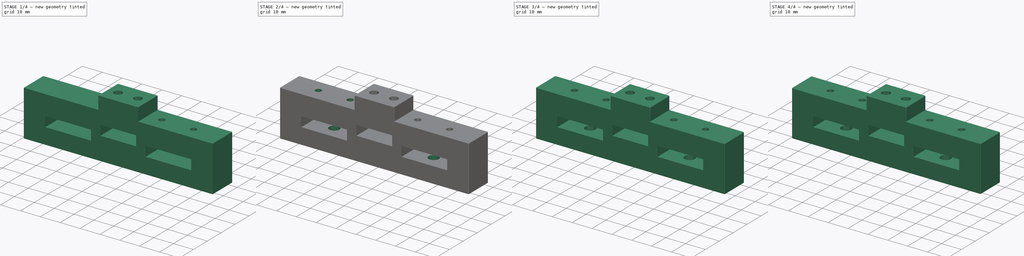
[diagram: build sequence overview — one tinted view per stage of 4, left to right]
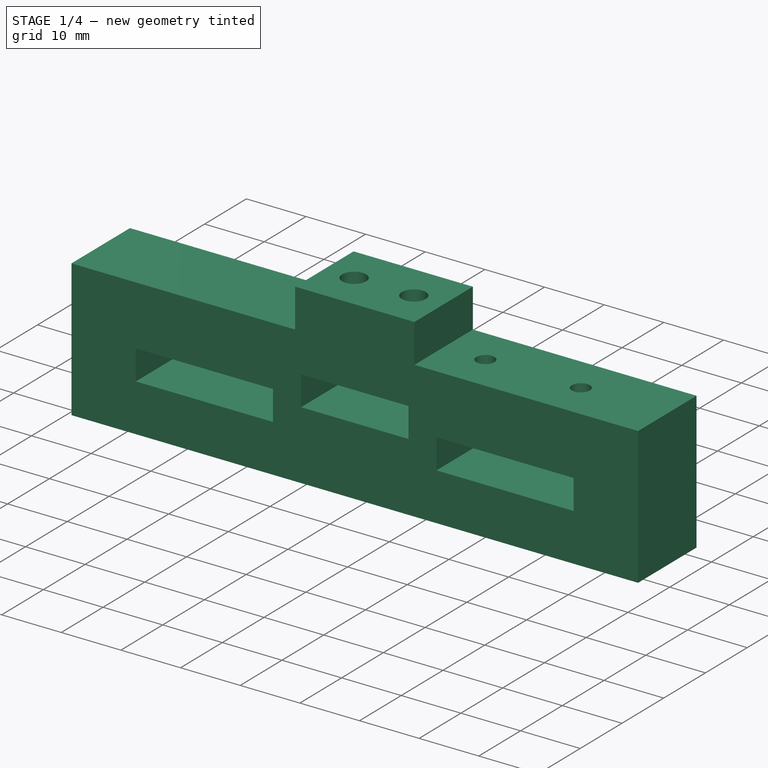
[diagram: stage 1 of 4 — iso view after this stage's code; geometry added in this stage tinted green]
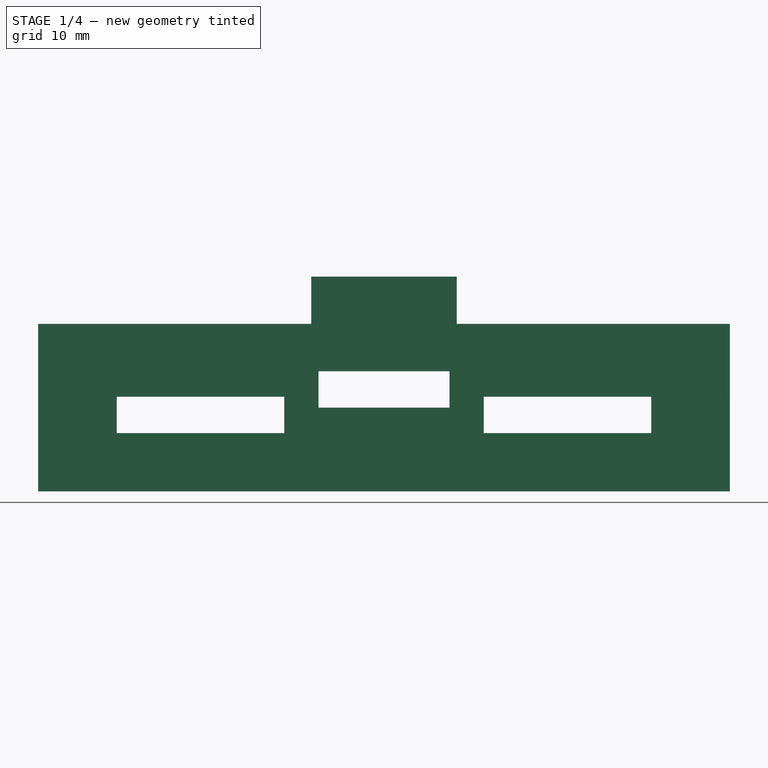
[diagram: stage 1 of 4 — front view after this stage's code; geometry added in this stage tinted green]
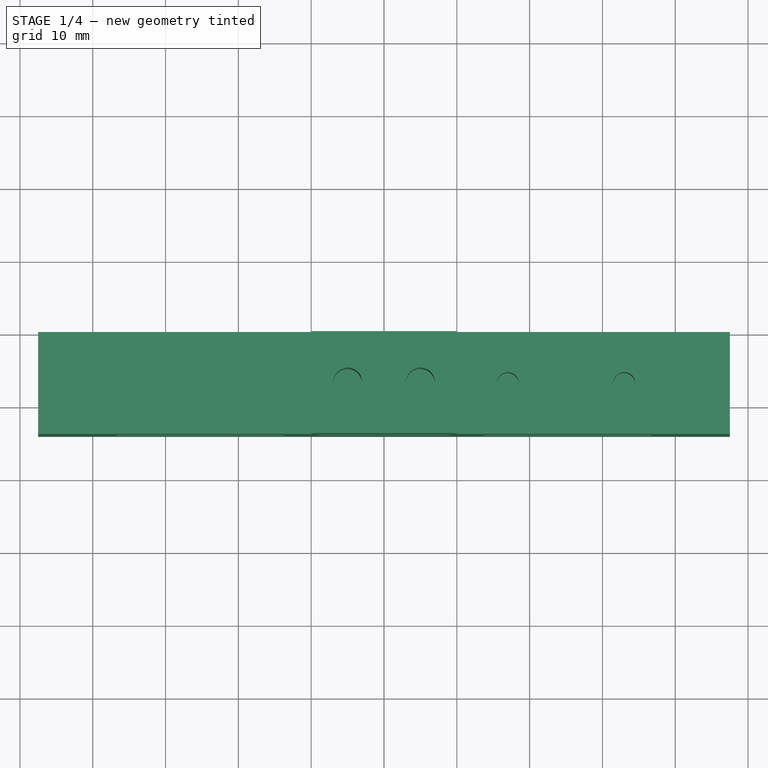
[diagram: stage 1 of 4 — top view after this stage's code; geometry added in this stage tinted green]
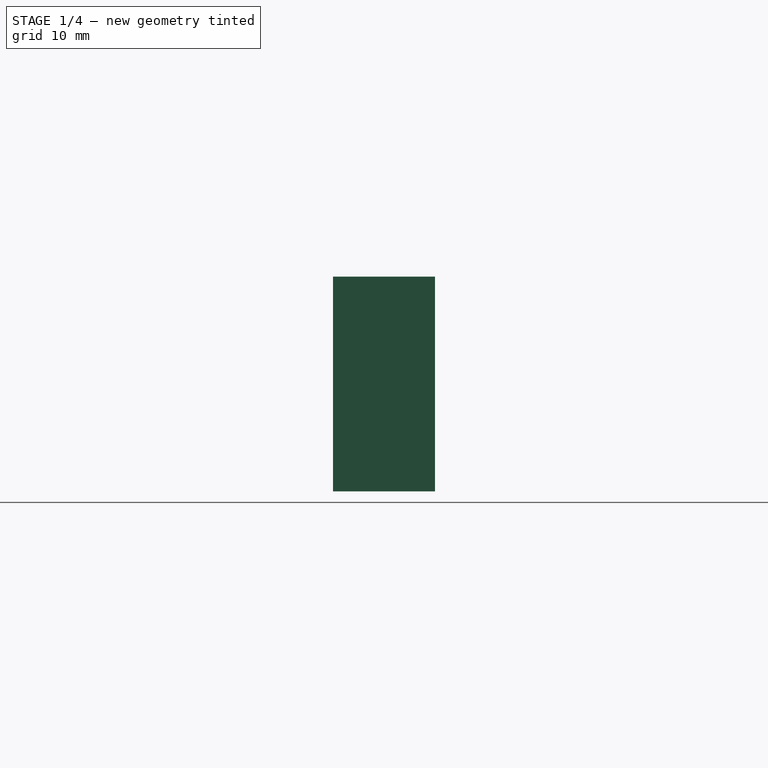
[diagram: stage 1 of 4 — right view after this stage's code; geometry added in this stage tinted green]
FCSTD DOCUMENT  (FreeCAD 0.15R4671 (Git))
Label: screw-block-holder
License: All rights reserved
LicenseURL: http://en.wikipedia.org/wiki/All_rights_reserved
objects: Sketcher::SketchObject×5, PartDesign::Chamfer×5, PartDesign::Pocket×4, PartDesign::Pad×1, PartDesign::Fillet×1
note: 21 computed .brp shape members not serialized (recipe doc carries the construction recipe); baked Part::Feature solids carry a one-line shape summary decoded from their .brp

FEATURE [Sketcher::SketchObject] Sketch
  Placement = pos=(0,0,0) rot=(-1,0,0;4.71239rad)
  sketch-geometry (23):
    g0: LineSegment StartX=-47.5 StartY=0 StartZ=0 EndX=47.5 EndY=0 EndZ=0
    g1: LineSegment StartX=-47.5 StartY=0 StartZ=0 EndX=-47.5 EndY=23 EndZ=0
    g2: LineSegment StartX=47.5 StartY=0 StartZ=0 EndX=47.5 EndY=23 EndZ=0
    g3: LineSegment StartX=-10 StartY=29.5 StartZ=0 EndX=10 EndY=29.5 EndZ=0
    g4: LineSegment StartX=-10 StartY=29.5 StartZ=0 EndX=-10 EndY=23 EndZ=0
    g5: LineSegment StartX=10 StartY=29.5 StartZ=0 EndX=10 EndY=23 EndZ=0
    g6: LineSegment StartX=10 StartY=23 StartZ=0 EndX=47.5 EndY=23 EndZ=0
    g7: LineSegment StartX=-10 StartY=23 StartZ=0 EndX=-47.5 EndY=23 EndZ=0
    g8: LineSegment StartX=-9 StartY=16.5 StartZ=0 EndX=9 EndY=16.5 EndZ=0
    g9: LineSegment StartX=9 StartY=16.5 StartZ=0 EndX=9 EndY=11.5 EndZ=0
    g10: LineSegment StartX=9 StartY=11.5 StartZ=0 EndX=-9 EndY=11.5 EndZ=0
    g11: LineSegment StartX=-9 StartY=11.5 StartZ=0 EndX=-9 EndY=16.5 EndZ=0
    g12: LineSegment [constr] StartX=0 StartY=29.5 StartZ=0 EndX=0 EndY=16.5 EndZ=0
    g13: LineSegment StartX=-36.7 StartY=13 StartZ=0 EndX=-13.7 EndY=13 EndZ=0
    g14: LineSegment StartX=-13.7 StartY=13 StartZ=0 EndX=-13.7 EndY=8 EndZ=0
    g15: LineSegment StartX=-13.7 StartY=8 StartZ=0 EndX=-36.7 EndY=8 EndZ=0
    g16: LineSegment StartX=-36.7 StartY=8 StartZ=0 EndX=-36.7 EndY=13 EndZ=0
    g17: LineSegment StartX=13.7 StartY=13 StartZ=0 EndX=36.7 EndY=13 EndZ=0
    g18: LineSegment StartX=36.7 StartY=13 StartZ=0 EndX=36.7 EndY=8 EndZ=0
    g19: LineSegment StartX=36.7 StartY=8 StartZ=0 EndX=13.7 EndY=8 EndZ=0
    g20: LineSegment StartX=13.7 StartY=8 StartZ=0 EndX=13.7 EndY=13 EndZ=0
    g21: LineSegment [constr] StartX=13.7 StartY=13 StartZ=0 EndX=13.7 EndY=23 EndZ=0
    g22: LineSegment [constr] StartX=-13.7 StartY=13 StartZ=0 EndX=-13.7 EndY=23 EndZ=0
  constraints (70):
    c: Horizontal(g0)
    c: DistanceX(g0) = 95
    c: Symmetric(g0,g0,g-2)
    c: Coincident(g1,g0)
    c: Vertical(g1)
    c: DistanceY(g1) = 23
    c: Horizontal(g3)
    c: DistanceX(g3) = 20
    c: Coincident(g4,g3)
    c: Vertical(g4)
    c: DistanceY(g4) = -6.5
    c: Coincident(g5,g3)
    c: Vertical(g5)
    c: Equal(g5,g4)
    c: Coincident(g6,g5)
    c: Horizontal(g6)
    c: Coincident(g7,g4)
    c: Horizontal(g7)
    c: Equal(g7,g6)
    c: DistanceX(g6) = 37.5
    c: Coincident(g7,g1)
    c: Coincident(g2,g6)
    c: Coincident(g2,g0)
    c: PointOnObject(g0,g-1)
    c: Coincident(g8,g9)
    c: Coincident(g9,g10)
    c: Coincident(g10,g11)
    c: Coincident(g11,g8)
    c: Horizontal(g8)
    c: Horizontal(g10)
    c: Vertical(g9)
    c: Vertical(g11)
    c: Symmetric(g8,g8,g-2)
    c: DistanceY(g11) = 5
    c: PointOnObject(g12,g3)
    c: PointOnObject(g12,g8)
    c: Vertical(g12)
    c: DistanceY(g12) = -13
    c: DistanceX(g10) = -18
    c: PointOnObject(g12,g-2)
    c: Coincident(g13,g14)
    c: Coincident(g14,g15)
    c: Coincident(g15,g16)
    c: Coincident(g16,g13)
    c: Horizontal(g13)
    c: Horizontal(g15)
    c: Vertical(g14)
    c: Vertical(g16)
    c: Coincident(g17,g18)
    c: Coincident(g18,g19)
    c: Coincident(g19,g20)
    c: Coincident(g20,g17)
    c: Horizontal(g17)
    c: Horizontal(g19)
    c: Vertical(g18)
    c: Vertical(g20)
    c: Equal(g14,g18)
    c: Equal(g17,g13)
    c: DistanceX(g19) = -23
    c: DistanceY(g20) = 5
    c: Vertical(g21)
    c: PointOnObject(g21,g6)
    c: PointOnObject(g22,g7)
    c: Vertical(g22)
    c: Equal(g22,g21)
    c: Symmetric(g19,g14,g-2)
    c: Coincident(g21,g17)
    c: Coincident(g22,g13)
    c: DistanceY(g22) = 10
    c: DistanceX(g17,g5) = -3.7
FEATURE [PartDesign::Pad] Pad
  Length = 14
  Length2 = 100
  Placement = pos=(0,0,0) rot=(-1,0,0;4.71239rad)
  Sketch = -> Sketch
  Type = 0
FEATURE [Sketcher::SketchObject] Sketch001
  ExternalGeometry = -> [Pad]
  Placement = pos=(0,0,29.5) rot=(0,0,1;3.14159rad)
  Support = -> Pad [Face8]
  sketch-geometry (3):
    g0: LineSegment [constr] StartX=-10 StartY=7 StartZ=0 EndX=10 EndY=7 EndZ=0
    g1: Circle CenterX=-5 CenterY=7 CenterZ=0 NormalX=0 NormalY=0 NormalZ=1 Radius=2
    g2: Circle CenterX=5 CenterY=7 CenterZ=0 NormalX=0 NormalY=0 NormalZ=1 Radius=2
  constraints (9):
    c: PointOnObject(g0,g-3)
    c: PointOnObject(g0,g-4)
    c: Symmetric(g-5,g-6,g0)
    c: PointOnObject(g1,g0)
    c: PointOnObject(g2,g0)
    c: Equal(g2,g1)
    c: Radius(g2) = 2
    c: DistanceX(g1,g2) = 10
    c: Symmetric(g2,g1,g-2)
FEATURE [PartDesign::Pocket] Pocket
  Length = 17.5
  Placement = pos=(0,0,0) rot=(-1,0,0;4.71239rad)
  Sketch = -> Sketch001
  Type = 0
FEATURE [Sketcher::SketchObject] Sketch002
  ExternalGeometry = -> [Pocket]
  Placement = pos=(0,0,23) rot=(0,0,1;3.14159rad)
  Support = -> Pocket [Face12]
  sketch-geometry (3):
    g0: Circle CenterX=-17 CenterY=7 CenterZ=0 NormalX=0 NormalY=0 NormalZ=1 Radius=1.5
    g1: LineSegment [constr] StartX=-47.5 StartY=7 StartZ=0 EndX=-10 EndY=7 EndZ=0
    g2: Circle CenterX=-33 CenterY=7 CenterZ=0 NormalX=0 NormalY=0 NormalZ=1 Radius=1.5
  constraints (10):
    c: PointOnObject(g1,g-5)
    c: PointOnObject(g1,g-4)
    c: Horizontal(g1)
    c: Symmetric(g-5,g-6,g1)
    c: PointOnObject(g0,g1)
    c: Radius(g0) = 1.5
    c: DistanceX(g0,g-4) = 7
    c: Equal(g2,g0)
    c: PointOnObject(g2,g1)
    c: DistanceX(g0,g2) = -16
FEATURE [PartDesign::Pocket] Pocket001
  Length = 14
  Placement = pos=(0,0,0) rot=(-1,0,0;4.71239rad)
  Sketch = -> Sketch002
  Type = 0
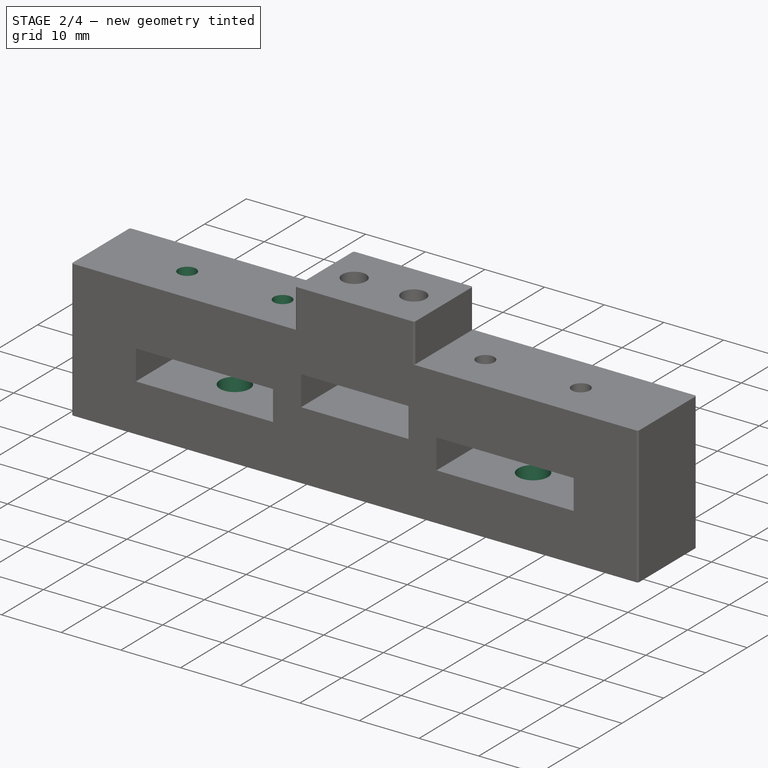
[diagram: stage 2 of 4 — iso view after this stage's code; geometry added in this stage tinted green]
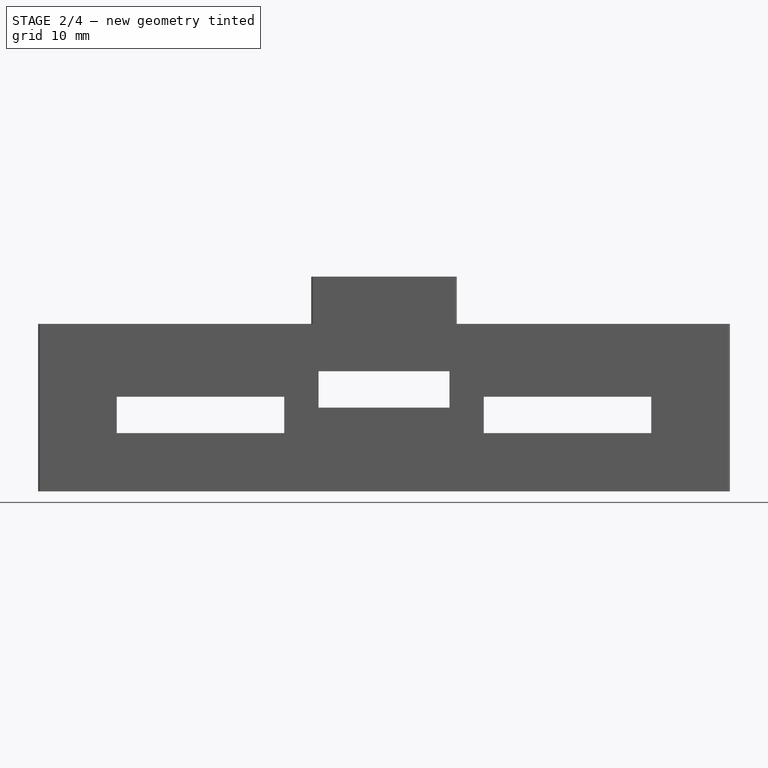
[diagram: stage 2 of 4 — front view after this stage's code; geometry added in this stage tinted green]
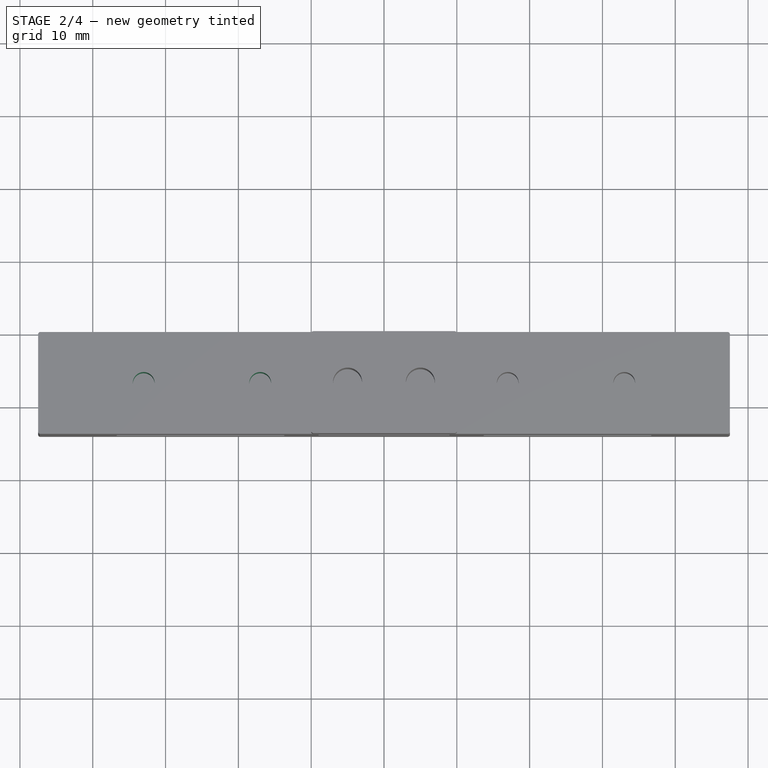
[diagram: stage 2 of 4 — top view after this stage's code; geometry added in this stage tinted green]
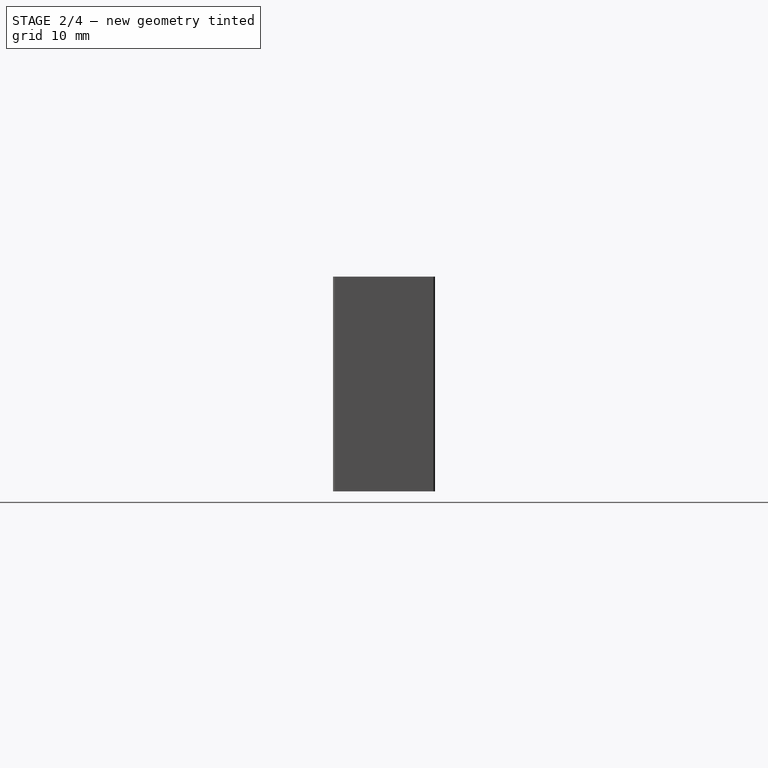
[diagram: stage 2 of 4 — right view after this stage's code; geometry added in this stage tinted green]
FEATURE [Sketcher::SketchObject] Sketch005
  ExternalGeometry = -> [Pocket001]
  Placement = pos=(0,0,23) rot=(0,0,1;3.14159rad)
  Support = -> Pocket001 [Face3]
  sketch-geometry (3):
    g0: Circle CenterX=33 CenterY=7 CenterZ=0 NormalX=0 NormalY=0 NormalZ=1 Radius=1.5
    g1: LineSegment [constr] StartX=10 StartY=7 StartZ=0 EndX=47.5 EndY=7 EndZ=0
    g2: Circle CenterX=17 CenterY=7 CenterZ=0 NormalX=0 NormalY=0 NormalZ=1 Radius=1.5
  constraints (9):
    c: PointOnObject(g0,g1)
    c: PointOnObject(g2,g1)
    c: DistanceX(g0,g2) = -16
    c: DistanceX(g2,g1) = -7
    c: PointOnObject(g1,g-5)
    c: PointOnObject(g1,g-4)
    c: Symmetric(g-6,g-5,g1)
    c: Radius(g0) = 1.5
    c: Equal(g0,g2)
FEATURE [PartDesign::Pocket] Pocket002
  Length = 14
  Placement = pos=(0,0,0) rot=(-1,0,0;4.71239rad)
  Sketch = -> Sketch005
  Type = 0
FEATURE [Sketcher::SketchObject] Sketch006
  ExternalGeometry = -> [Pocket002]
  Placement = pos=(0,0,0) rot=(1,0,0;3.14159rad)
  Support = -> Pocket002 [Face12]
  sketch-geometry (3):
    g0: LineSegment [constr] StartX=-47.5 StartY=7 StartZ=0 EndX=47.5 EndY=7 EndZ=0
    g1: Circle CenterX=-25 CenterY=7 CenterZ=0 NormalX=0 NormalY=0 NormalZ=1 Radius=2.5
    g2: Circle CenterX=25 CenterY=7 CenterZ=0 NormalX=0 NormalY=0 NormalZ=1 Radius=2.5
  constraints (9):
    c: PointOnObject(g0,g-4)
    c: PointOnObject(g0,g-6)
    c: Symmetric(g-4,g-5,g0)
    c: PointOnObject(g1,g0)
    c: Radius(g1) = 2.5
    c: Equal(g2,g1)
    c: PointOnObject(g2,g0)
    c: DistanceX(g2,g1) = -50
    c: Symmetric(g2,g1,g-2)
FEATURE [PartDesign::Pocket] Pocket003
  Length = 20
  Placement = pos=(0,0,0) rot=(-1,0,0;4.71239rad)
  Sketch = -> Sketch006
  Type = 0
FEATURE [PartDesign::Fillet] Fillet
  Base = -> Pocket003 [Edge32,Edge15,Edge17,Edge34,Edge36,Edge19,Edge3,Edge4]
  Placement = pos=(0,0,0) rot=(-1,0,0;4.71239rad)
  Radius = 0.3
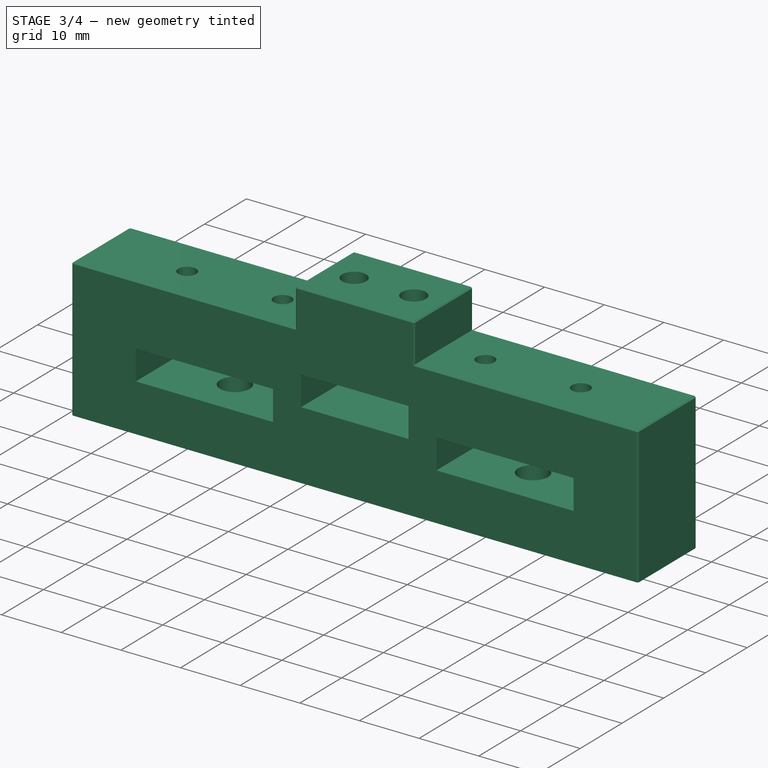
[diagram: stage 3 of 4 — iso view after this stage's code; geometry added in this stage tinted green]
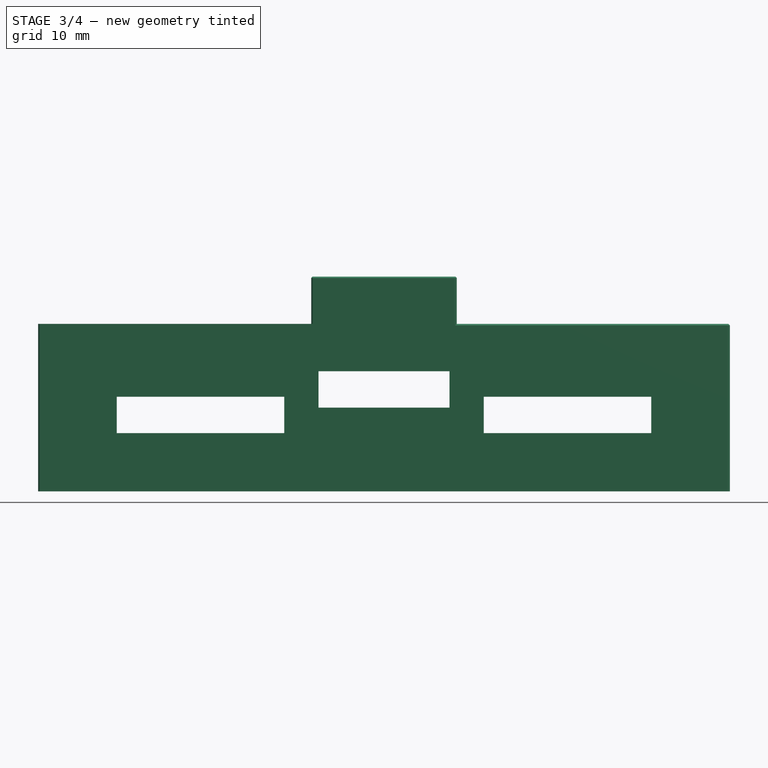
[diagram: stage 3 of 4 — front view after this stage's code; geometry added in this stage tinted green]
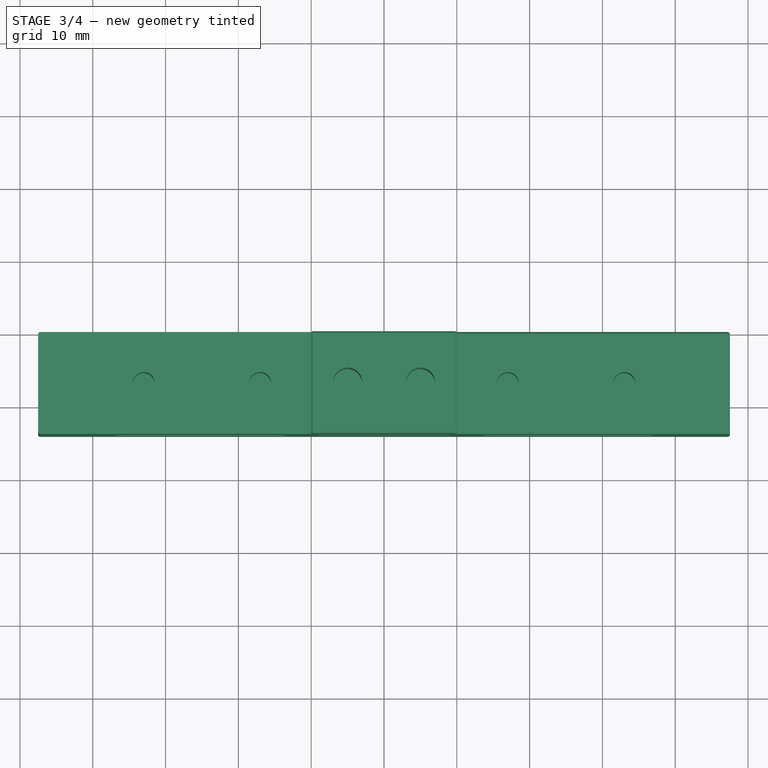
[diagram: stage 3 of 4 — top view after this stage's code; geometry added in this stage tinted green]
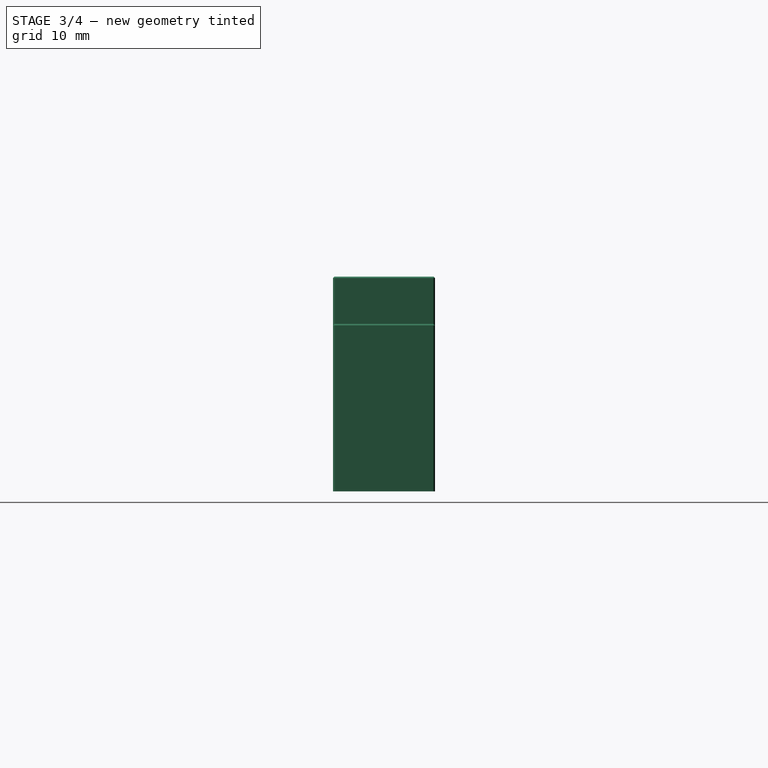
[diagram: stage 3 of 4 — right view after this stage's code; geometry added in this stage tinted green]
FEATURE [PartDesign::Chamfer] Chamfer
  Base = -> Fillet [Edge6,Edge1,Edge5,Edge7,Edge9,Edge11,Edge10,Edge8]
  Placement = pos=(0,0,0) rot=(-1,0,0;4.71239rad)
  Size = 0.2
FEATURE [PartDesign::Chamfer] Chamfer001
  Base = -> Chamfer [Edge57,Edge89,Edge88,Edge87,Edge29,Edge55,Edge27]
  Placement = pos=(0,0,0) rot=(-1,0,0;4.71239rad)
  Size = 0.2
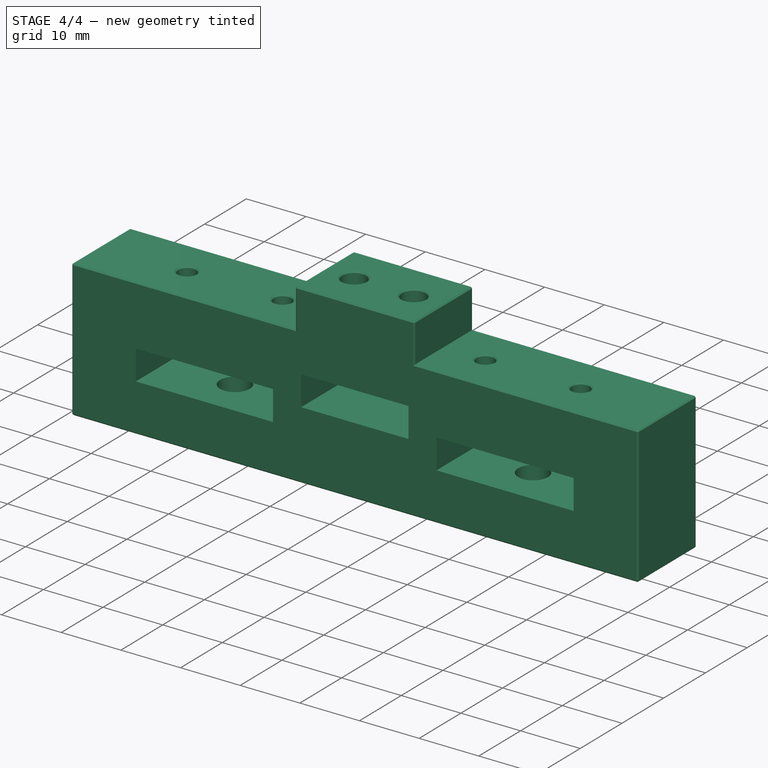
[diagram: stage 4 of 4 — iso view after this stage's code; geometry added in this stage tinted green]
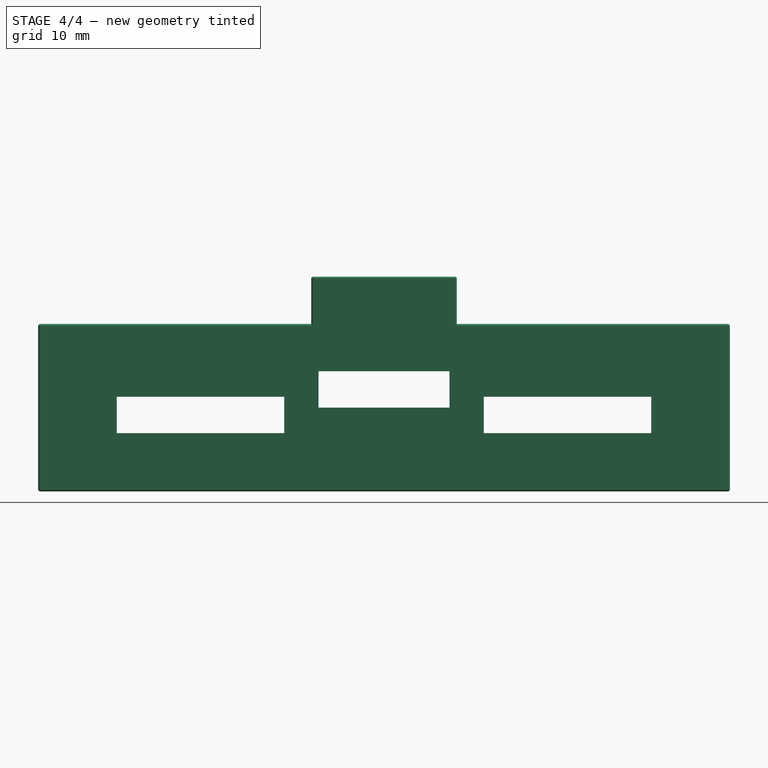
[diagram: stage 4 of 4 — front view after this stage's code; geometry added in this stage tinted green]
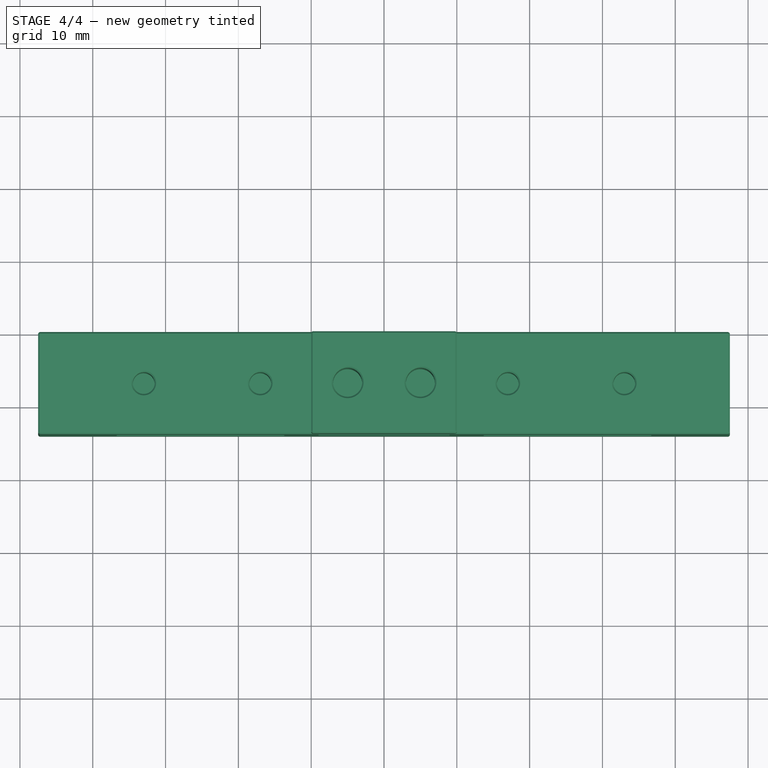
[diagram: stage 4 of 4 — top view after this stage's code; geometry added in this stage tinted green]
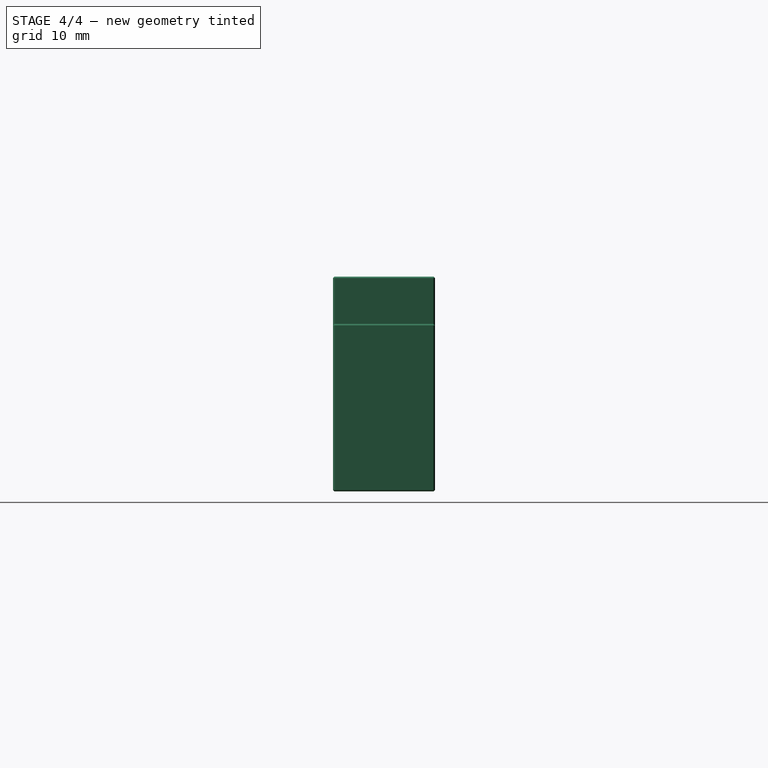
[diagram: stage 4 of 4 — right view after this stage's code; geometry added in this stage tinted green]
FEATURE [PartDesign::Chamfer] Chamfer002
  Base = -> Chamfer001 [Edge48,Edge49,Edge50,Edge51,Edge9,Edge7,Edge41]
  Placement = pos=(0,0,0) rot=(-1,0,0;4.71239rad)
  Size = 0.2
FEATURE [PartDesign::Chamfer] Chamfer003
  Base = -> Chamfer002 [Edge31,Edge32,Edge30,Edge25,Edge3,Edge33,Edge35,Edge34,Edge37,Edge36]
  Placement = pos=(0,0,0) rot=(-1,0,0;4.71239rad)
  Size = 0.2
FEATURE [PartDesign::Chamfer] Chamfer004
  Base = -> Chamfer003 [Edge123,Edge122,Edge132,Edge131,Edge106,Edge105]
  Placement = pos=(0,0,0) rot=(-1,0,0;4.71239rad)
  Size = 0.2
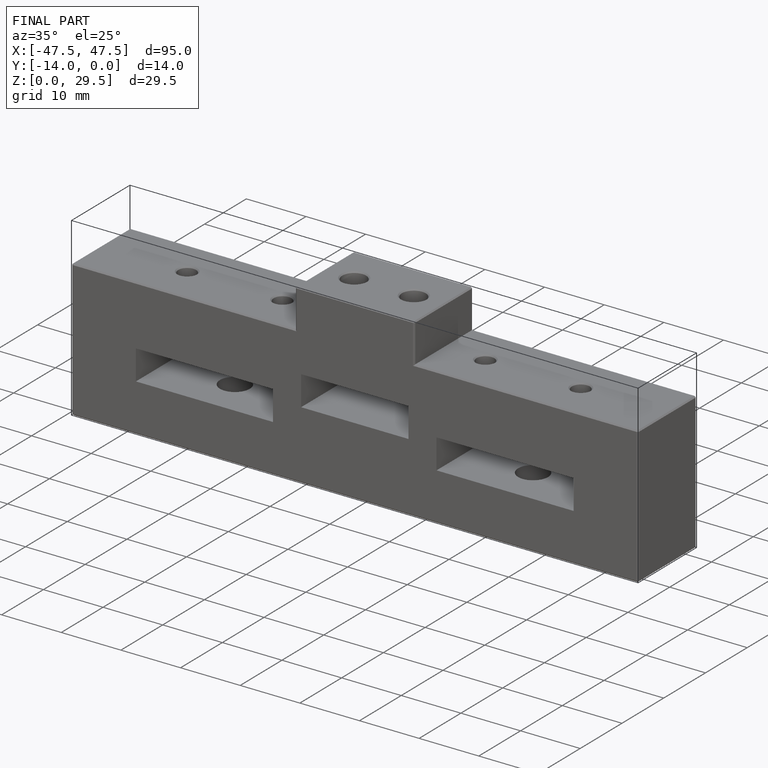
[diagram: finished part — iso view with bounding-box wireframe]
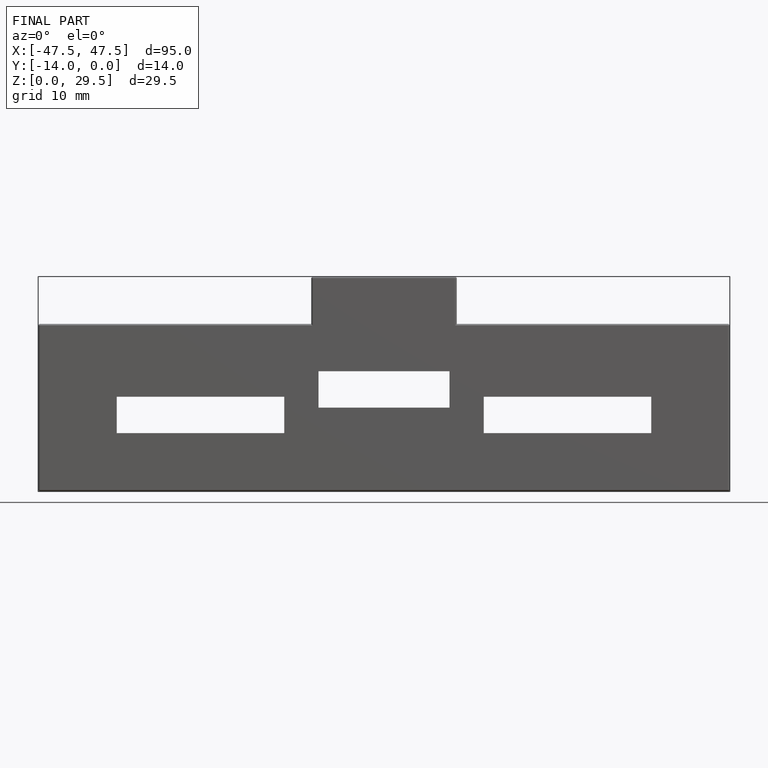
[diagram: finished part — front view with bounding-box wireframe]
